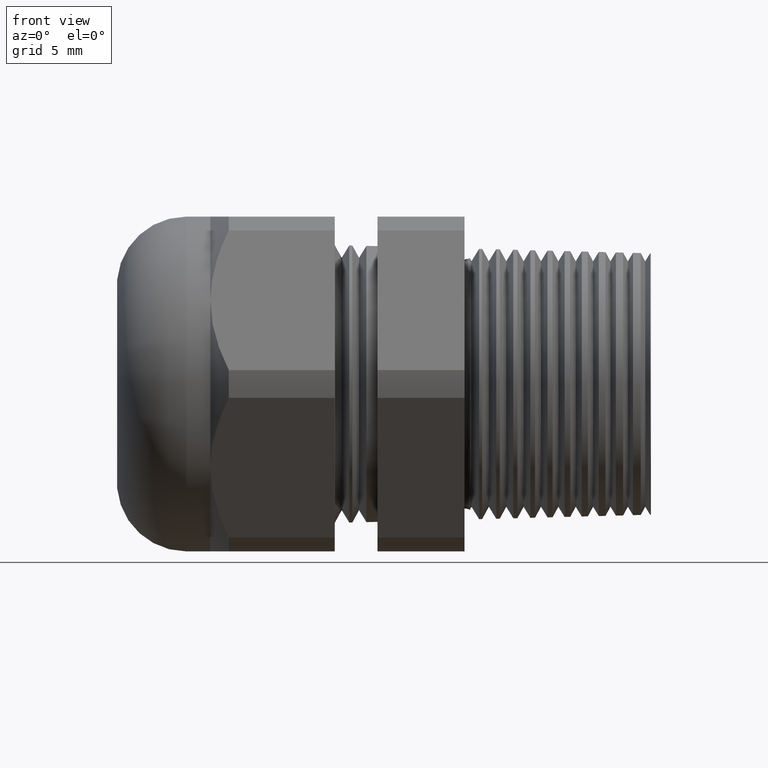
[diagram: clean part render]
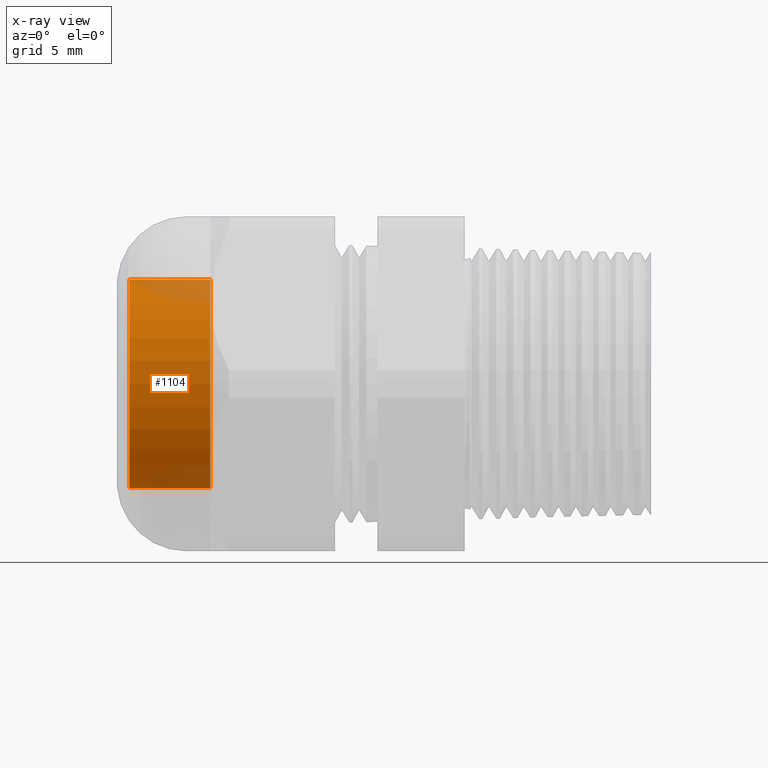
[diagram: x-ray — body ghosted, one internal face saturated and labeled with its STEP entity id]
A machine part, front view, then the same camera in x-ray: the body is ghosted and one INTERNAL B-rep face — a face not visible from any outside direction — is saturated and labeled: STEP entity #1104.
In plain terms, the highlighted cylindrical surface (partial cylindrical patch) has radius 8.382 mm, axis along (1, 0, 0).
Its self-contained STEP definition (entity closure, byte-faithful):
#1104 = ADVANCED_FACE ( 'NONE', ( #3223 ), #3222, .T. ) ;
#1105 = EDGE_LOOP ( 'NONE', ( #1106, #1107, #1109, #1110 ) ) ;
#1106 = ORIENTED_EDGE ( 'NONE', *, *, #1115, .F. ) ;
#1107 = ORIENTED_EDGE ( 'NONE', *, *, #1108, .T. ) ;
#1108 = EDGE_CURVE ( 'NONE', #1133, #1136, #3285, .T. ) ;
#1109 = ORIENTED_EDGE ( 'NONE', *, *, #1121, .T. ) ;
#1110 = ORIENTED_EDGE ( 'NONE', *, *, #1175, .F. ) ;
#1115 = EDGE_CURVE ( 'NONE', #1133, #1116, #3274, .T. ) ;
#1116 = VERTEX_POINT ( 'NONE', #3270 ) ;
#1119 = VERTEX_POINT ( 'NONE', #3264 ) ;
#1121 = EDGE_CURVE ( 'NONE', #1136, #1119, #3263, .T. ) ;
#1133 = VERTEX_POINT ( 'NONE', #3300 ) ;
#1136 = VERTEX_POINT ( 'NONE', #3294 ) ;
#1175 = EDGE_CURVE ( 'NONE', #1116, #1119, #3360, .T. ) ;
#3219 = DIRECTION ( 'NONE',  ( 0.0000000000000000000, 0.0000000000000000000, -1.000000000000000000 ) ) ;
#3220 = DIRECTION ( 'NONE',  ( 1.000000000000000000, 0.0000000000000000000, 0.0000000000000000000 ) ) ;
#3221 = AXIS2_PLACEMENT_3D ( 'NONE', #3227, #3220, #3219 ) ;
#3222 = CYLINDRICAL_SURFACE ( 'NONE', #3221, 0.3300000000000000200 ) ;
#3223 = FACE_OUTER_BOUND ( 'NONE', #1105, .T. ) ;
#3227 = CARTESIAN_POINT ( 'NONE',  ( 0.0000000000000000000, 0.0000000000000000000, 0.0000000000000000000 ) ) ;
#3260 = DIRECTION ( 'NONE',  ( 1.000000000000000000, 0.0000000000000000000, 0.0000000000000000000 ) ) ;
#3261 = VECTOR ( 'NONE', #3260, 39.37007874015748100 ) ;
#3262 = CARTESIAN_POINT ( 'NONE',  ( 0.0000000000000000000, 0.0000000000000000000, -0.3300000000000000200 ) ) ;
#3263 = LINE ( 'NONE', #3262, #3261 ) ;
#3264 = CARTESIAN_POINT ( 'NONE',  ( -1.114724409448818700, 0.0000000000000000000, -0.3300000000000000200 ) ) ;
#3270 = CARTESIAN_POINT ( 'NONE',  ( -1.114724409448818700, 4.041334437186265900E-017, 0.3300000000000000200 ) ) ;
#3271 = DIRECTION ( 'NONE',  ( 1.000000000000000000, 0.0000000000000000000, 0.0000000000000000000 ) ) ;
#3272 = VECTOR ( 'NONE', #3271, 39.37007874015748100 ) ;
#3273 = CARTESIAN_POINT ( 'NONE',  ( 0.0000000000000000000, 4.041334437186265900E-017, 0.3300000000000000200 ) ) ;
#3274 = LINE ( 'NONE', #3273, #3272 ) ;
#3281 = DIRECTION ( 'NONE',  ( 0.0000000000000000000, 0.0000000000000000000, -1.000000000000000000 ) ) ;
#3282 = DIRECTION ( 'NONE',  ( 1.000000000000000000, 0.0000000000000000000, 0.0000000000000000000 ) ) ;
#3283 = CARTESIAN_POINT ( 'NONE',  ( -1.371000000000000000, 0.0000000000000000000, 0.0000000000000000000 ) ) ;
#3284 = AXIS2_PLACEMENT_3D ( 'NONE', #3283, #3282, #3281 ) ;
#3285 = CIRCLE ( 'NONE', #3284, 0.3300000000000001300 ) ;
#3294 = CARTESIAN_POINT ( 'NONE',  ( -1.371000000000000000, 0.0000000000000000000, -0.3300000000000001300 ) ) ;
#3300 = CARTESIAN_POINT ( 'NONE',  ( -1.371000000000000000, 4.041334437186266500E-017, 0.3300000000000001300 ) ) ;
#3356 = DIRECTION ( 'NONE',  ( 0.0000000000000000000, 0.0000000000000000000, -1.000000000000000000 ) ) ;
#3357 = DIRECTION ( 'NONE',  ( 1.000000000000000000, 0.0000000000000000000, 0.0000000000000000000 ) ) ;
#3358 = CARTESIAN_POINT ( 'NONE',  ( -1.114724409448818700, 0.0000000000000000000, 0.0000000000000000000 ) ) ;
#3359 = AXIS2_PLACEMENT_3D ( 'NONE', #3358, #3357, #3356 ) ;
#3360 = CIRCLE ( 'NONE', #3359, 0.3300000000000000200 ) ;